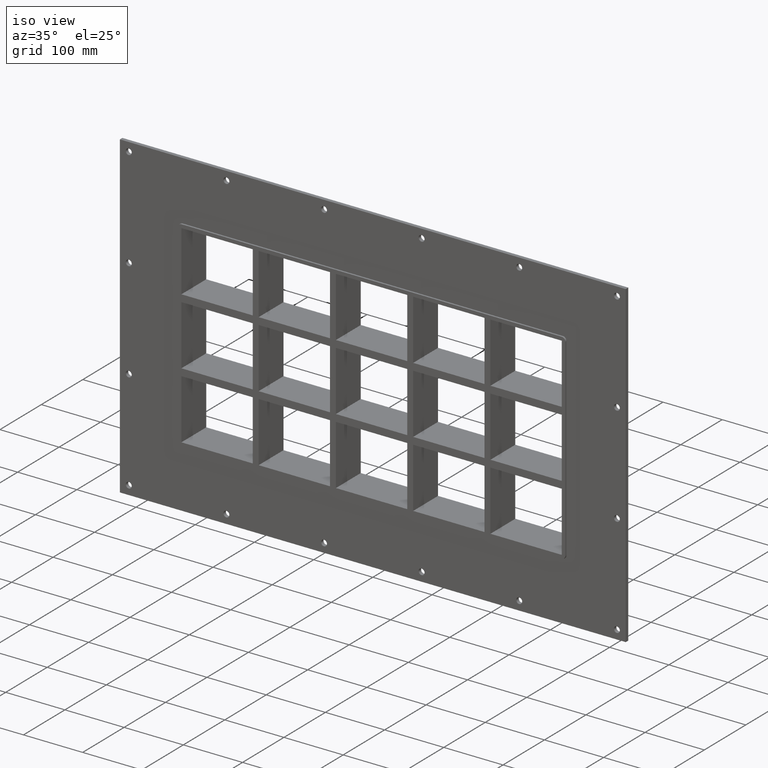
[diagram: clean part render]
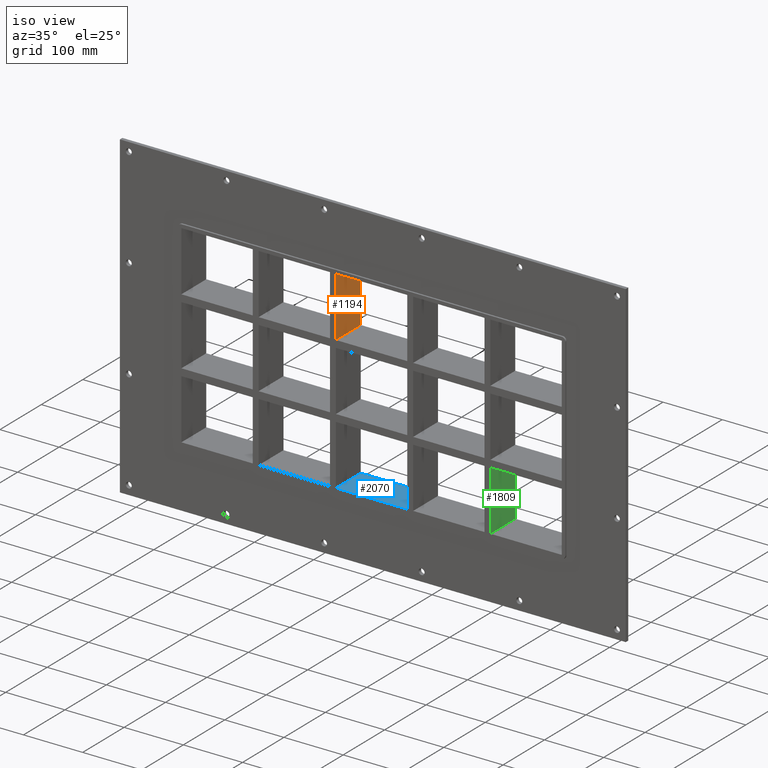
[diagram: same view with three faces highlighted in distinct colors, each labeled with its STEP entity id]
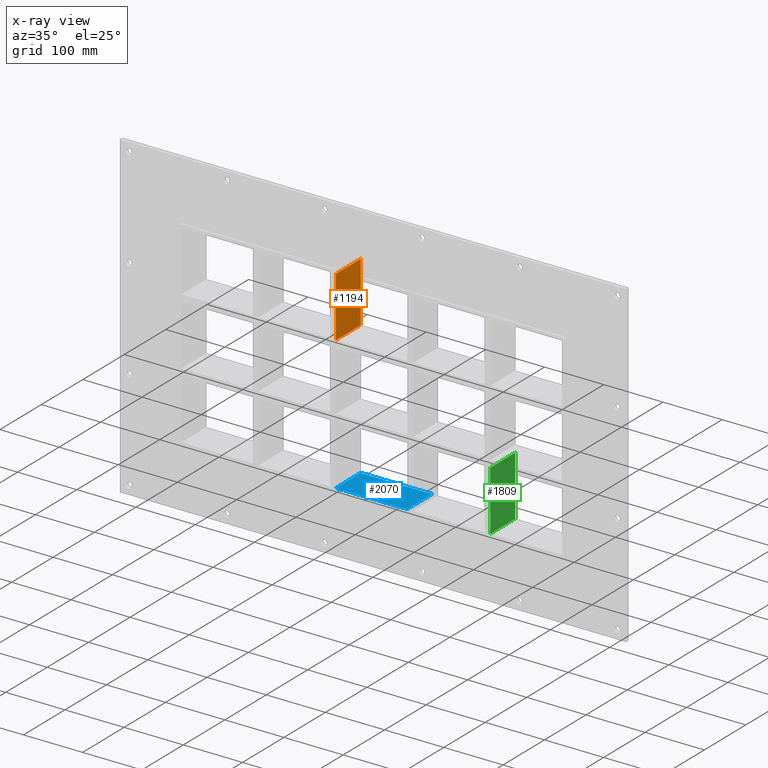
[diagram: x-ray of the same camera — body ghosted, the three highlighted faces saturated]
A machine part, iso view with three faces highlighted in distinct colors.
The next image is the same camera in x-ray (body ghosted, the three faces saturated) — at least one of them is partly hidden behind the body in this view.
Their STEP definitions:

[orange] entity #1194 — the highlighted planar face has unit normal (1, 0, 0).
#851=CARTESIAN_POINT('',(-60.250000000007269,57.0,62.499999999999893));
#852=VERTEX_POINT('',#851);
#859=CARTESIAN_POINT('',(-60.250000000007269,-3.0,62.499999999999893));
#860=VERTEX_POINT('',#859);
#861=CARTESIAN_POINT('',(-60.250000000007269,-3.0,62.499999999999893));
#862=DIRECTION('',(0.0,1.0,0.0));
#863=VECTOR('',#862,60.0);
#864=LINE('',#861,#863);
#865=EDGE_CURVE('',#860,#852,#864,.T.);
#1164=CARTESIAN_POINT('',(-60.250000000007269,-3.0,163.5));
#1165=DIRECTION('',(1.0,0.0,0.0));
#1166=DIRECTION('',(0.0,0.0,-1.0));
#1167=AXIS2_PLACEMENT_3D('',#1164,#1165,#1166);
#1168=PLANE('',#1167);
#1169=ORIENTED_EDGE('',*,*,#865,.T.);
#1170=CARTESIAN_POINT('',(-60.250000000007269,57.0,163.5));
#1171=VERTEX_POINT('',#1170);
#1172=CARTESIAN_POINT('',(-60.250000000007269,57.0,163.5));
#1173=DIRECTION('',(0.0,0.0,-1.0));
#1174=VECTOR('',#1173,101.00000000000011);
#1175=LINE('',#1172,#1174);
#1176=EDGE_CURVE('',#1171,#852,#1175,.T.);
#1177=ORIENTED_EDGE('',*,*,#1176,.F.);
#1178=CARTESIAN_POINT('',(-60.250000000007269,-3.0,163.5));
#1179=VERTEX_POINT('',#1178);
#1180=CARTESIAN_POINT('',(-60.250000000007248,-3.0,163.5));
#1181=DIRECTION('',(0.0,1.0,0.0));
#1182=VECTOR('',#1181,60.000000000000007);
#1183=LINE('',#1180,#1182);
#1184=EDGE_CURVE('',#1179,#1171,#1183,.T.);
#1185=ORIENTED_EDGE('',*,*,#1184,.F.);
#1186=CARTESIAN_POINT('',(-60.250000000007269,-3.0,163.5));
#1187=DIRECTION('',(0.0,0.0,-1.0));
#1188=VECTOR('',#1187,101.00000000000011);
#1189=LINE('',#1186,#1188);
#1190=EDGE_CURVE('',#1179,#860,#1189,.T.);
#1191=ORIENTED_EDGE('',*,*,#1190,.T.);
#1192=EDGE_LOOP('',(#1169,#1177,#1185,#1191));
#1193=FACE_OUTER_BOUND('',#1192,.T.);
#1194=ADVANCED_FACE('',(#1193),#1168,.T.);

[blue] entity #2070 — the highlighted planar face has unit normal (0, 0, -1).
#1586=CARTESIAN_POINT('',(60.249999999998565,57.0,-163.5));
#1587=VERTEX_POINT('',#1586);
#1604=CARTESIAN_POINT('',(-60.250000000007269,57.0,-163.49999999998425));
#1605=VERTEX_POINT('',#1604);
#1612=CARTESIAN_POINT('',(-60.250000000007276,57.0,-163.5));
#1613=DIRECTION('',(1.0,0.0,0.0));
#1614=VECTOR('',#1613,120.50000000000583);
#1615=LINE('',#1612,#1614);
#1616=EDGE_CURVE('',#1605,#1587,#1615,.T.);
#1848=CARTESIAN_POINT('',(60.249999999998565,-3.0,-163.5));
#1849=VERTEX_POINT('',#1848);
#1850=CARTESIAN_POINT('',(60.249999999998565,-3.0,-163.5));
#1851=DIRECTION('',(0.0,1.0,0.0));
#1852=VECTOR('',#1851,60.000000000000007);
#1853=LINE('',#1850,#1852);
#1854=EDGE_CURVE('',#1849,#1587,#1853,.T.);
#2012=CARTESIAN_POINT('',(-60.250000000007269,-3.0,-163.49999999998428));
#2013=VERTEX_POINT('',#2012);
#2020=CARTESIAN_POINT('',(-60.25000000000729,57.000000000000007,-163.5));
#2021=DIRECTION('',(0.0,-1.0,0.0));
#2022=VECTOR('',#2021,60.000000000000007);
#2023=LINE('',#2020,#2022);
#2024=EDGE_CURVE('',#1605,#2013,#2023,.T.);
#2054=CARTESIAN_POINT('',(321.25000000000011,0.0,-163.5));
#2055=DIRECTION('',(0.0,0.0,-1.0));
#2056=DIRECTION('',(-1.0,0.0,0.0));
#2057=AXIS2_PLACEMENT_3D('',#2054,#2055,#2056);
#2058=PLANE('',#2057);
#2059=ORIENTED_EDGE('',*,*,#1854,.T.);
#2060=ORIENTED_EDGE('',*,*,#1616,.F.);
#2061=ORIENTED_EDGE('',*,*,#2024,.T.);
#2062=CARTESIAN_POINT('',(60.24999999999855,-3.0,-163.5));
#2063=DIRECTION('',(-1.0,0.0,0.0));
#2064=VECTOR('',#2063,120.50000000000583);
#2065=LINE('',#2062,#2064);
#2066=EDGE_CURVE('',#1849,#2013,#2065,.T.);
#2067=ORIENTED_EDGE('',*,*,#2066,.F.);
#2068=EDGE_LOOP('',(#2059,#2060,#2061,#2067));
#2069=FACE_OUTER_BOUND('',#2068,.T.);
#2070=ADVANCED_FACE('',(#2069),#2058,.F.);

[green] entity #1809 — the highlighted planar face has unit normal (1, 0, 0).
#1665=CARTESIAN_POINT('',(200.74999999999278,57.0,-163.49999999998425));
#1666=VERTEX_POINT('',#1665);
#1683=CARTESIAN_POINT('',(200.74999999999278,57.0,-62.500000000009273));
#1684=VERTEX_POINT('',#1683);
#1691=CARTESIAN_POINT('',(200.74999999999278,57.0,-62.500000000009294));
#1692=DIRECTION('',(0.0,0.0,-1.0));
#1693=VECTOR('',#1692,100.99999999997496);
#1694=LINE('',#1691,#1693);
#1695=EDGE_CURVE('',#1684,#1666,#1694,.T.);
#1779=CARTESIAN_POINT('',(200.74999999999278,-3.0,163.5));
#1780=DIRECTION('',(1.0,0.0,0.0));
#1781=DIRECTION('',(0.0,0.0,-1.0));
#1782=AXIS2_PLACEMENT_3D('',#1779,#1780,#1781);
#1783=PLANE('',#1782);
#1784=CARTESIAN_POINT('',(200.74999999999278,-3.0,-62.500000000009273));
#1785=VERTEX_POINT('',#1784);
#1786=CARTESIAN_POINT('',(200.74999999999278,-3.0,-62.500000000009265));
#1787=DIRECTION('',(0.0,1.0,0.0));
#1788=VECTOR('',#1787,60.0);
#1789=LINE('',#1786,#1788);
#1790=EDGE_CURVE('',#1785,#1684,#1789,.T.);
#1791=ORIENTED_EDGE('',*,*,#1790,.F.);
#1792=CARTESIAN_POINT('',(200.74999999999278,-3.0,-163.49999999998428));
#1793=VERTEX_POINT('',#1792);
#1794=CARTESIAN_POINT('',(200.74999999999278,-3.0,-62.500000000009294));
#1795=DIRECTION('',(0.0,0.0,-1.0));
#1796=VECTOR('',#1795,100.99999999997496);
#1797=LINE('',#1794,#1796);
#1798=EDGE_CURVE('',#1785,#1793,#1797,.T.);
#1799=ORIENTED_EDGE('',*,*,#1798,.T.);
#1800=CARTESIAN_POINT('',(200.74999999999278,57.000000000000007,-163.5));
#1801=DIRECTION('',(0.0,-1.0,0.0));
#1802=VECTOR('',#1801,60.000000000000007);
#1803=LINE('',#1800,#1802);
#1804=EDGE_CURVE('',#1666,#1793,#1803,.T.);
#1805=ORIENTED_EDGE('',*,*,#1804,.F.);
#1806=ORIENTED_EDGE('',*,*,#1695,.F.);
#1807=EDGE_LOOP('',(#1791,#1799,#1805,#1806));
#1808=FACE_OUTER_BOUND('',#1807,.T.);
#1809=ADVANCED_FACE('',(#1808),#1783,.T.);